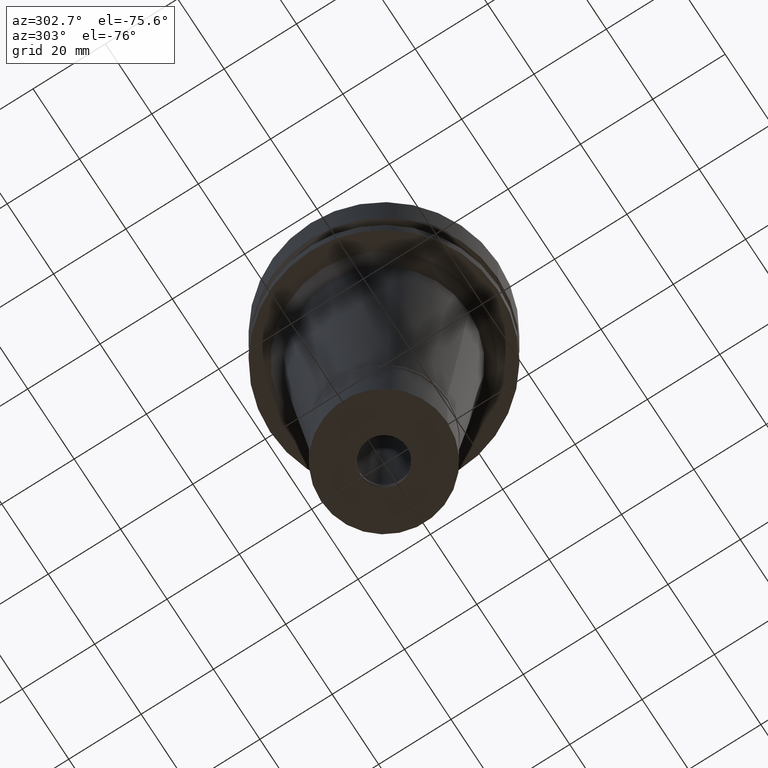
[diagram: clean part render]
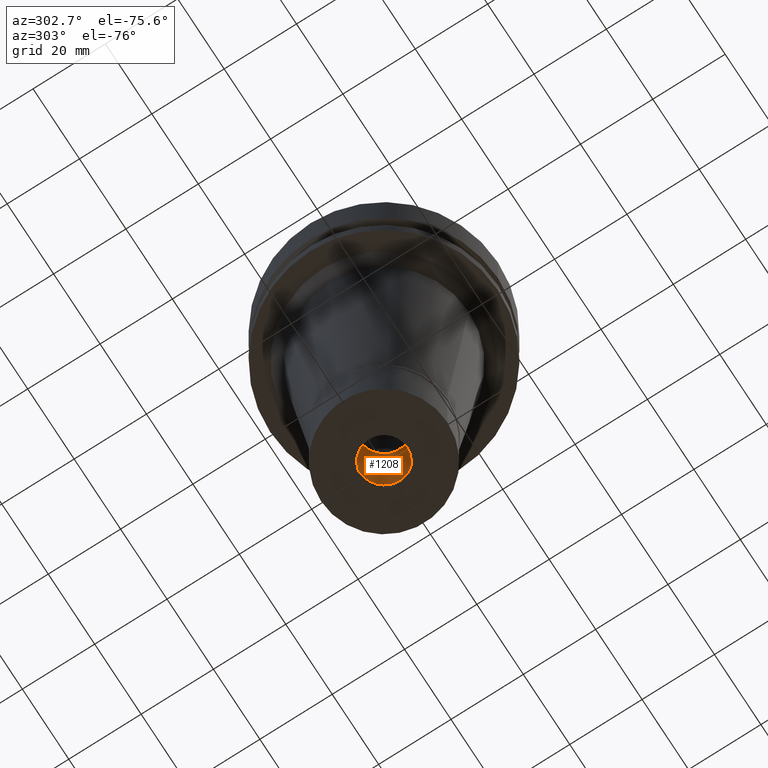
[diagram: same view with one face highlighted and labeled with its STEP entity id]
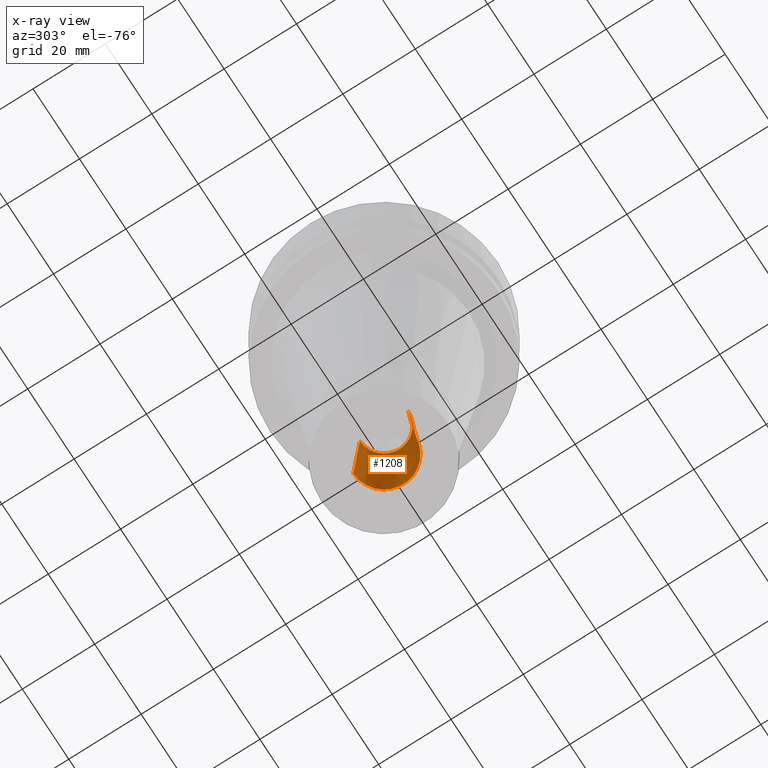
[diagram: x-ray of the same camera — body ghosted, the highlighted face saturated]
A machine part, auxiliary view. The second image highlights one B-rep face of the part: STEP entity #1208.
The next image is the same camera in x-ray: the body ghosted, the highlighted face saturated — about 8% of this face is hidden behind the body in this view.
In plain terms, the highlighted conical surface has half-angle 4 deg.
Its self-contained STEP definition (entity closure, byte-faithful):
#7 = VECTOR ( 'NONE', #1944, 999.9999999999998863 ) ;
#16 = EDGE_CURVE ( 'NONE', #1079, #2117, #2002, .T. ) ;
#47 = DIRECTION ( 'NONE',  ( 0.0000000000000000000, -1.000000000000000000, 0.0000000000000000000 ) ) ;
#144 = DIRECTION ( 'NONE',  ( 0.0000000000000000000, 1.000000000000000000, 0.0000000000000000000 ) ) ;
#207 = CARTESIAN_POINT ( 'NONE',  ( 0.0000000000000000000, 6.650000000000999556, -86.84376742507998870 ) ) ;
#240 = ORIENTED_EDGE ( 'NONE', *, *, #16, .F. ) ;
#292 = CARTESIAN_POINT ( 'NONE',  ( 0.0000000000000000000, 8.500000000003000267, -113.2999999999999972 ) ) ;
#424 = CARTESIAN_POINT ( 'NONE',  ( 0.0000000000000000000, 0.0000000000000000000, -100.0718837125000107 ) ) ;
#469 = CARTESIAN_POINT ( 'NONE',  ( 0.0000000000000000000, 8.500000000002000178, -113.2999999999999972 ) ) ;
#525 = CONICAL_SURFACE ( 'NONE', #1498, 7.575000000003000444, 0.06981317007975955391 ) ;
#686 = DIRECTION ( 'NONE',  ( 0.0000000000000000000, 1.000000000000000000, 0.0000000000000000000 ) ) ;
#791 = DIRECTION ( 'NONE',  ( 0.0000000000000000000, 0.0000000000000000000, -1.000000000000000000 ) ) ;
#831 = ORIENTED_EDGE ( 'NONE', *, *, #1905, .T. ) ;
#856 = EDGE_LOOP ( 'NONE', ( #831, #1309, #1141, #240 ) ) ;
#1079 = VERTEX_POINT ( 'NONE', #292 ) ;
#1139 = AXIS2_PLACEMENT_3D ( 'NONE', #1224, #791, #144 ) ;
#1141 = ORIENTED_EDGE ( 'NONE', *, *, #1311, .F. ) ;
#1161 = EDGE_CURVE ( 'NONE', #1163, #1952, #2814, .T. ) ;
#1163 = VERTEX_POINT ( 'NONE', #1750 ) ;
#1208 = ADVANCED_FACE ( 'NONE', ( #2398 ), #525, .F. ) ;
#1224 = CARTESIAN_POINT ( 'NONE',  ( 0.0000000000000000000, 0.0000000000000000000, -113.2999999999999972 ) ) ;
#1309 = ORIENTED_EDGE ( 'NONE', *, *, #1161, .T. ) ;
#1311 = EDGE_CURVE ( 'NONE', #2117, #1952, #2456, .T. ) ;
#1498 = AXIS2_PLACEMENT_3D ( 'NONE', #424, #2463, #47 ) ;
#1508 = CARTESIAN_POINT ( 'NONE',  ( 0.0000000000000000000, -8.500000000002000178, -113.2999999999999972 ) ) ;
#1510 = VECTOR ( 'NONE', #2209, 999.9999999999998863 ) ;
#1750 = CARTESIAN_POINT ( 'NONE',  ( 0.0000000000000000000, -8.500000000003000267, -113.2999999999999972 ) ) ;
#1873 = CIRCLE ( 'NONE', #1139, 8.500000000003000267 ) ;
#1905 = EDGE_CURVE ( 'NONE', #1079, #1163, #1873, .T. ) ;
#1944 = DIRECTION ( 'NONE',  ( 0.0000000000000000000, 0.06975647374414160884, 0.9975640502598231985 ) ) ;
#1952 = VERTEX_POINT ( 'NONE', #2088 ) ;
#1961 = AXIS2_PLACEMENT_3D ( 'NONE', #2016, #2653, #686 ) ;
#2002 = LINE ( 'NONE', #469, #1510 ) ;
#2016 = CARTESIAN_POINT ( 'NONE',  ( 0.0000000000000000000, 0.0000000000000000000, -86.84376742507998870 ) ) ;
#2088 = CARTESIAN_POINT ( 'NONE',  ( 0.0000000000000000000, -6.650000000000999556, -86.84376742507998870 ) ) ;
#2117 = VERTEX_POINT ( 'NONE', #207 ) ;
#2209 = DIRECTION ( 'NONE',  ( 0.0000000000000000000, -0.06975647374414160884, 0.9975640502598231985 ) ) ;
#2398 = FACE_OUTER_BOUND ( 'NONE', #856, .T. ) ;
#2456 = CIRCLE ( 'NONE', #1961, 6.650000000002999734 ) ;
#2463 = DIRECTION ( 'NONE',  ( 0.0000000000000000000, 0.0000000000000000000, -1.000000000000000000 ) ) ;
#2653 = DIRECTION ( 'NONE',  ( 0.0000000000000000000, 0.0000000000000000000, -1.000000000000000000 ) ) ;
#2814 = LINE ( 'NONE', #1508, #7 ) ;